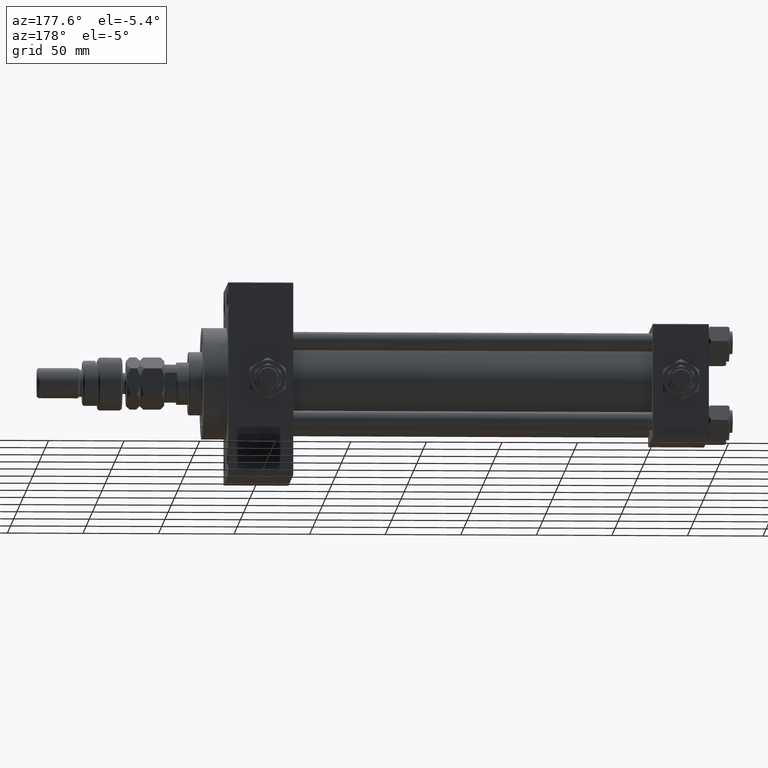
[diagram: clean part render]
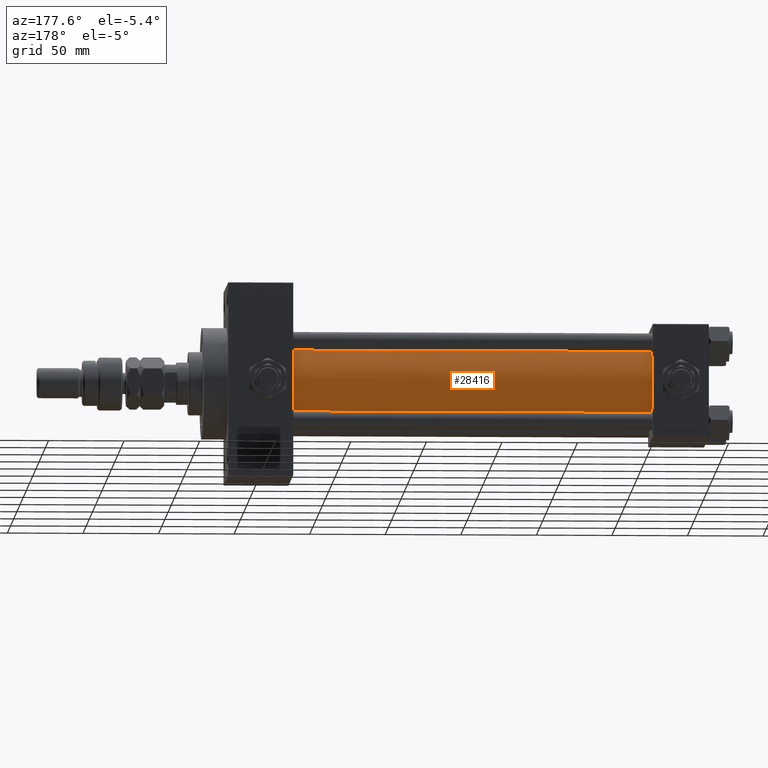
[diagram: same view with one face highlighted and labeled with its STEP entity id]
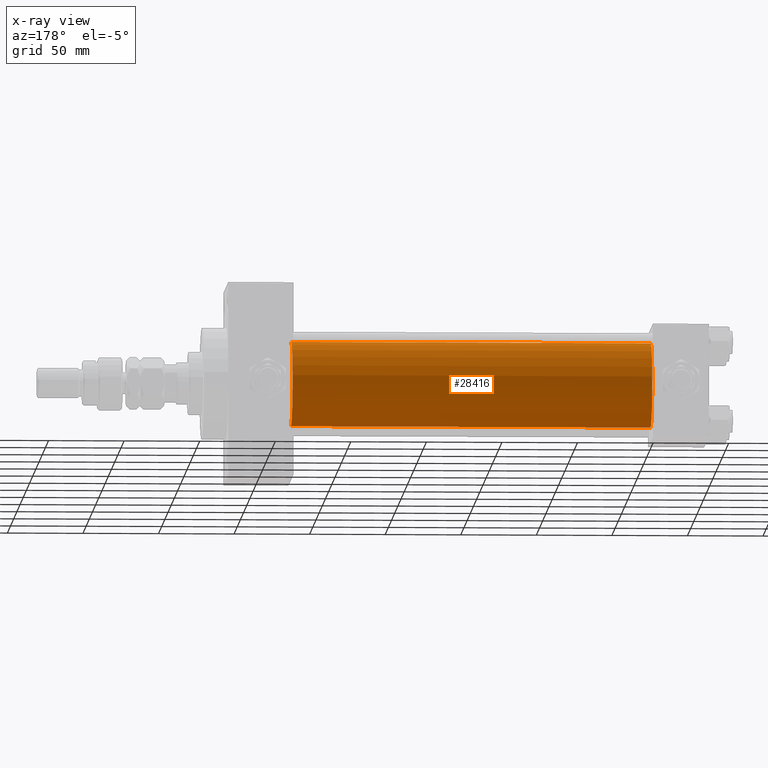
[diagram: x-ray of the same camera — body ghosted, the highlighted face saturated]
A machine part, auxiliary view. The second image highlights one B-rep face of the part: STEP entity #28416.
The next image is the same camera in x-ray: the body ghosted, the highlighted face saturated — about 0% of this face is hidden behind the body in this view.
In plain terms, the highlighted cylindrical surface (partial cylindrical patch) has radius 28 mm, axis along (-1, -0, -0).
Its self-contained STEP definition (entity closure, byte-faithful):
#122 = VERTEX_POINT ( 'NONE', #39044 ) ;
#1140 = LINE ( 'NONE', #4346, #51224 ) ;
#4346 = CARTESIAN_POINT ( 'NONE',  ( 274.9999999999999432, -2.602085213965210642E-15, 28.00000000000000000 ) ) ;
#4381 = CYLINDRICAL_SURFACE ( 'NONE', #22087, 28.00000000000000000 ) ;
#4632 = DIRECTION ( 'NONE',  ( 0.000000000000000000, 0.000000000000000000, 1.000000000000000000 ) ) ;
#4678 = EDGE_CURVE ( 'NONE', #122, #43245, #8969, .T. ) ;
#5096 = VERTEX_POINT ( 'NONE', #46204 ) ;
#6024 = CARTESIAN_POINT ( 'NONE',  ( 37.00000000000000711, -2.602085213965210642E-15, 28.00000000000000000 ) ) ;
#6949 = DIRECTION ( 'NONE',  ( 0.000000000000000000, 0.000000000000000000, 1.000000000000000000 ) ) ;
#8969 = CIRCLE ( 'NONE', #39362, 28.00000000000000000 ) ;
#11683 = CARTESIAN_POINT ( 'NONE',  ( 37.00000000000000711, -2.602085213965210642E-15, 0.000000000000000000 ) ) ;
#14293 = CIRCLE ( 'NONE', #33742, 28.00000000000000000 ) ;
#14392 = EDGE_CURVE ( 'NONE', #5096, #45267, #14293, .T. ) ;
#16627 = CARTESIAN_POINT ( 'NONE',  ( 274.9999999999999432, 8.269258236473784371E-16, -28.00000000000000000 ) ) ;
#22087 = AXIS2_PLACEMENT_3D ( 'NONE', #36119, #24739, #4632 ) ;
#24739 = DIRECTION ( 'NONE',  ( -1.000000000000000000, -0.000000000000000000, -0.000000000000000000 ) ) ;
#24832 = LINE ( 'NONE', #16627, #35210 ) ;
#26846 = ORIENTED_EDGE ( 'NONE', *, *, #46554, .T. ) ;
#28416 = ADVANCED_FACE ( 'NONE', ( #28710 ), #4381, .T. ) ;
#28710 = FACE_OUTER_BOUND ( 'NONE', #35431, .T. ) ;
#33742 = AXIS2_PLACEMENT_3D ( 'NONE', #11683, #35248, #6949 ) ;
#35210 = VECTOR ( 'NONE', #49180, 1000.000000000000000 ) ;
#35248 = DIRECTION ( 'NONE',  ( 1.000000000000000000, -0.000000000000000000, 0.000000000000000000 ) ) ;
#35431 = EDGE_LOOP ( 'NONE', ( #46983, #26846, #41707, #50018 ) ) ;
#36119 = CARTESIAN_POINT ( 'NONE',  ( 274.9999999999999432, -2.602085213965210642E-15, 0.000000000000000000 ) ) ;
#37389 = DIRECTION ( 'NONE',  ( -1.000000000000000000, -0.000000000000000000, -0.000000000000000000 ) ) ;
#39044 = CARTESIAN_POINT ( 'NONE',  ( 274.9999999999999432, 8.269258236473784371E-16, -28.00000000000000000 ) ) ;
#39362 = AXIS2_PLACEMENT_3D ( 'NONE', #46537, #50237, #42293 ) ;
#41707 = ORIENTED_EDGE ( 'NONE', *, *, #14392, .T. ) ;
#42293 = DIRECTION ( 'NONE',  ( 0.000000000000000000, 0.000000000000000000, -1.000000000000000000 ) ) ;
#43245 = VERTEX_POINT ( 'NONE', #48823 ) ;
#45267 = VERTEX_POINT ( 'NONE', #6024 ) ;
#46204 = CARTESIAN_POINT ( 'NONE',  ( 37.00000000000000711, 8.269258236473784371E-16, -28.00000000000000000 ) ) ;
#46537 = CARTESIAN_POINT ( 'NONE',  ( 274.9999999999999432, -2.602085213965210642E-15, 0.000000000000000000 ) ) ;
#46554 = EDGE_CURVE ( 'NONE', #122, #5096, #24832, .T. ) ;
#46983 = ORIENTED_EDGE ( 'NONE', *, *, #4678, .F. ) ;
#48048 = EDGE_CURVE ( 'NONE', #43245, #45267, #1140, .T. ) ;
#48823 = CARTESIAN_POINT ( 'NONE',  ( 274.9999999999999432, -2.602085213965210642E-15, 28.00000000000000000 ) ) ;
#49180 = DIRECTION ( 'NONE',  ( -1.000000000000000000, -0.000000000000000000, -0.000000000000000000 ) ) ;
#50018 = ORIENTED_EDGE ( 'NONE', *, *, #48048, .F. ) ;
#50237 = DIRECTION ( 'NONE',  ( 1.000000000000000000, 0.000000000000000000, 0.000000000000000000 ) ) ;
#51224 = VECTOR ( 'NONE', #37389, 1000.000000000000000 ) ;